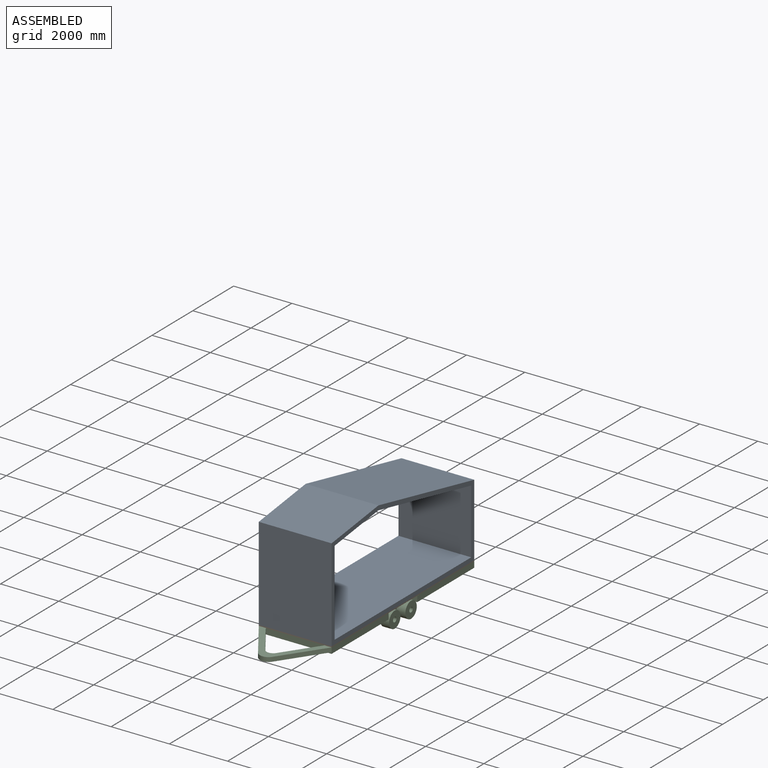
[diagram: assembled view]
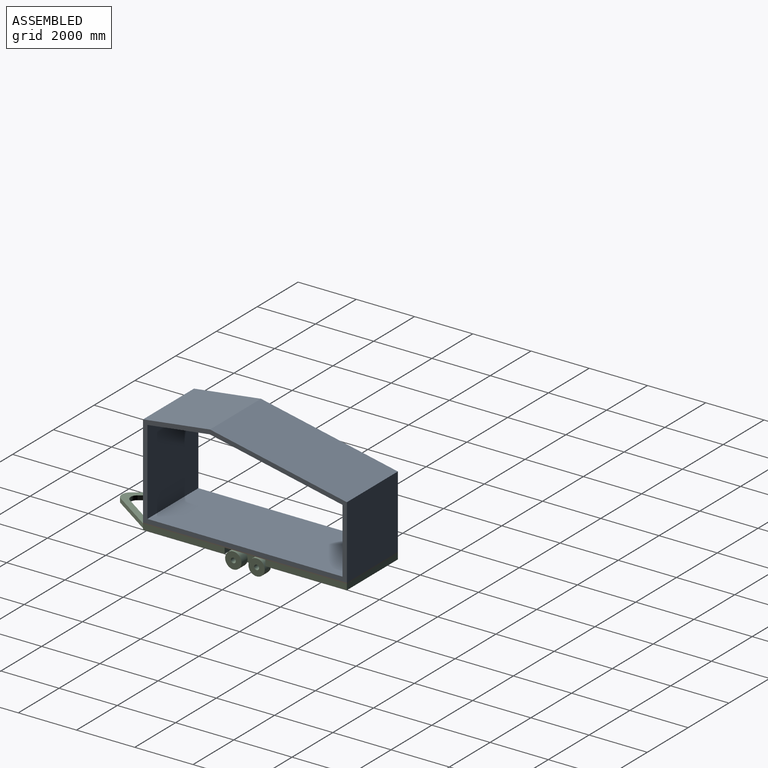
[diagram: assembled view, second angle]
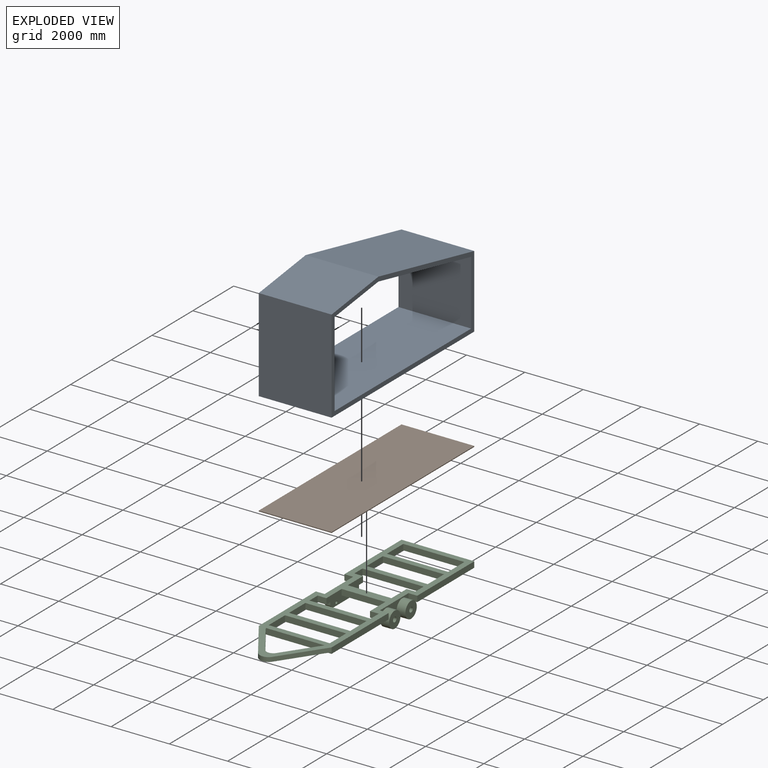
[diagram: exploded view]
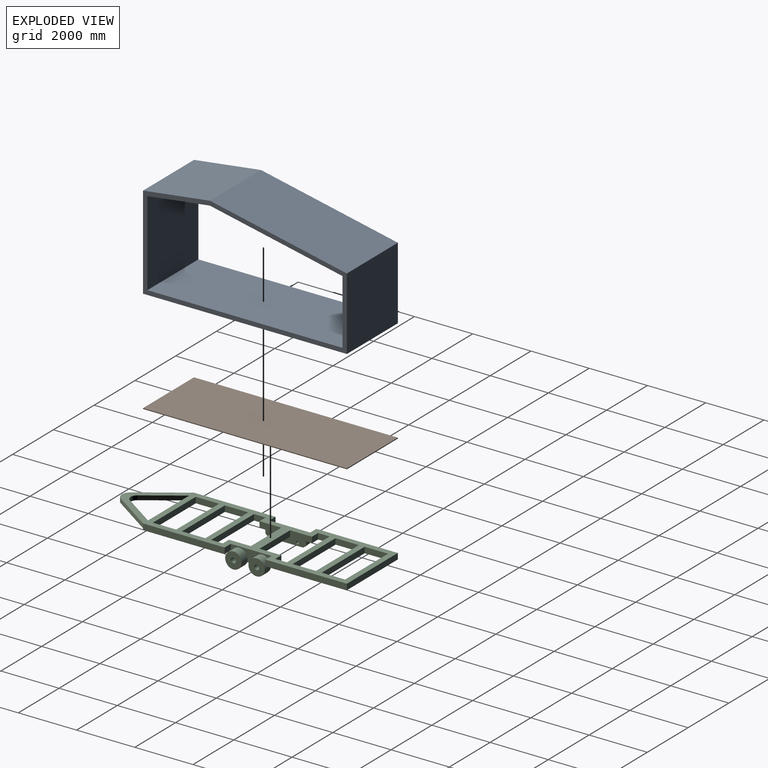
[diagram: exploded view, second angle]
ASSEMBLY  parts=3 mates=6
PART A: 12 faces, bbox 2500x7000x3500 mm
  f0: plane 3200x2500mm, normal (0,-1,0), area 8000000mm2, adj f1,f9,f10,f11
  f1: plane 7000x2500mm, normal (0,0,-1), area 17500000mm2, adj f0,f2,f10,f11
  f2: plane 2500x2500mm, normal (0,1,0), area 6250000mm2, adj f1,f3,f10,f11
  f3: plane 4700x2500mm, normal (0,0.21,0.98), area 12013013.8mm2, adj f2,f9,f10,f11
  f4: plane 6700x2500mm, normal (0,0,1), area 16750000mm2, adj f5,f8,f10,f11
  f5: plane 2918.29x2500mm, normal (0,1,0), area 7295736.5mm2, adj f4,f6,f10,f11
  f6: plane 2500x2143.92mm, normal (0,0.13,-0.99), area 5405198.9mm2, adj f5,f7,f10,f11
  f7: plane 4556.08x2500mm, normal (0,-0.21,-0.98), area 11645162.6mm2, adj f6,f8,f10,f11
  f8: plane 2500x2228.56mm, normal (0,-1,0), area 5571393.2mm2, adj f4,f7,f10,f11
  f9: plane 2500x2300mm, normal (0,-0.13,0.99), area 5798706.8mm2, adj f0,f3,f10,f11
  f10: plane 7000x3500mm, normal (1,0,0), area 2886876.3mm2, adj f0,f1,f2,f3,f4,f5,f6,f7
  f11: plane 7000x3500mm, normal (-1,0,0), area 2886876.3mm2, adj f0,f1,f2,f3,f4,f5,f6,f7
PART B: 6 faces, bbox 7000x2500x30 mm
  f0: plane 2500x30mm, normal (-1,0,0), area 75000mm2, adj f1,f3,f4,f5
  f1: plane 7000x30mm, normal (0,-1,0), area 210000mm2, adj f0,f2,f4,f5
  f2: plane 2500x30mm, normal (1,0,0), area 75000mm2, adj f1,f3,f4,f5
  f3: plane 7000x30mm, normal (0,1,0), area 210000mm2, adj f0,f2,f4,f5
  f4: plane 7000x2500mm, normal (0,0,1), area 17500000mm2, adj f0,f1,f2,f3
  f5: plane 7000x2500mm, normal (0,0,-1), area 17500000mm2, adj f0,f1,f2,f3
PART C: 77 faces, bbox 8600x2500x600 mm
  f0: plane 2500x200mm, normal (-1,0,0), area 427368.3mm2, adj f4,f34,f35,f47,f73,f75,f76
  f1: plane 1400x420mm, normal (0,-1,0), area 227323.6mm2, adj f36,f37,f47,f48,f49,f52,f58,f61
  f2: plane 170x170mm, normal (0,-1,0), area 14844mm2, adj f50,f68
  f3: plane 170x170mm, normal (0,-1,0), area 14844mm2, adj f51,f63
  f4: plane 2800x2500mm, normal (0,0,-1), area 2500000mm2, adj f0,f7,f8,f9,f10,f11,f12,f13
  f5: plane 1500x300mm, normal (0,0,-1), area 450000mm2, adj f14,f15,f16,f23
  f6: plane 2800x2500mm, normal (0,0,-1), area 2500000mm2, adj f14,f16,f20,f21,f22,f24,f25,f26
  f7: plane 800x200mm, normal (0,1,0), area 160000mm2, adj f4,f8,f46,f47
  f8: plane 2100x200mm, normal (1,0,0), area 420000mm2, adj f4,f7,f9,f47
  f9: plane 800x200mm, normal (0,-1,0), area 160000mm2, adj f4,f8,f46,f47
  f10: plane 400x200mm, normal (0,1,0), area 80000mm2, adj f4,f11,f41,f47
  f11: plane 2100x200mm, normal (1,0,0), area 420000mm2, adj f4,f10,f12,f47
  f12: plane 400x200mm, normal (0,-1,0), area 80000mm2, adj f4,f11,f13,f47
  f13: plane 300x200mm, normal (-1,0,0), area 60000mm2, adj f4,f12,f14,f47
  f14: plane 1800x420mm, normal (0,-1,0), area 582292mm2, adj f4,f5,f6,f13,f15,f23,f24,f47
  f15: plane 1500x200mm, normal (-1,0,0), area 300000mm2, adj f5,f14,f16,f47
  f16: plane 1800x420mm, normal (0,1,0), area 582292mm2, adj f4,f5,f6,f15,f23,f28,f41,f47
  f17: plane 800x200mm, normal (0,-1,0), area 160000mm2, adj f4,f18,f42,f47
  f18: plane 2100x200mm, normal (-1,0,0), area 420000mm2, adj f4,f17,f19,f47
  f19: plane 800x200mm, normal (0,1,0), area 160000mm2, adj f4,f18,f42,f47
  f20: plane 800x200mm, normal (0,-1,0), area 160000mm2, adj f6,f21,f43,f47
  f21: plane 2100x200mm, normal (-1,0,0), area 420000mm2, adj f6,f20,f22,f47
  f22: plane 800x200mm, normal (0,1,0), area 160000mm2, adj f6,f21,f43,f47
  f23: plane 1500x200mm, normal (1,0,0), area 300000mm2, adj f5,f14,f16,f47
  f24: plane 300x200mm, normal (1,0,0), area 60000mm2, adj f6,f14,f25,f47
  f25: plane 400x200mm, normal (0,-1,0), area 80000mm2, adj f6,f24,f26,f47
  f26: plane 2100x200mm, normal (-1,0,0), area 420000mm2, adj f6,f25,f27,f47
  f27: plane 400x200mm, normal (0,1,0), area 80000mm2, adj f6,f26,f28,f47
  f28: plane 300x200mm, normal (1,0,0), area 60000mm2, adj f6,f16,f27,f47
  f29: plane 2100x200mm, normal (1,0,0), area 420000mm2, adj f6,f30,f44,f47
  f30: plane 800x200mm, normal (0,-1,0), area 160000mm2, adj f6,f29,f31,f47
  f31: plane 2100x200mm, normal (-1,0,0), area 420000mm2, adj f6,f30,f44,f47
  f32: plane 1400x420mm, normal (0,1,0), area 562292mm2, adj f33,f45,f47,f53,f54,f55,f56,f57
  f33: plane 300x200mm, normal (1,0,0), area 60000mm2, adj f4,f32,f34,f47
  f34: plane 2800x200mm, normal (0,1,0), area 560000mm2, adj f0,f4,f33,f47,f70
  f35: plane 2800x200mm, normal (0,-1,0), area 560000mm2, adj f0,f4,f36,f47,f72
  f36: plane 300x200mm, normal (1,0,0), area 60000mm2, adj f1,f4,f35,f47
  f37: plane 300x200mm, normal (-1,0,0), area 60000mm2, adj f1,f6,f38,f47
  f38: plane 2800x200mm, normal (0,-1,0), area 560000mm2, adj f6,f37,f39,f47
  f39: plane 2500x200mm, normal (1,0,0), area 500000mm2, adj f6,f38,f40,f47
  f40: plane 2800x200mm, normal (0,1,0), area 560000mm2, adj f6,f39,f45,f47
  f41: plane 300x200mm, normal (-1,0,0), area 60000mm2, adj f4,f10,f16,f47
  f42: plane 2100x200mm, normal (1,0,0), area 420000mm2, adj f4,f17,f19,f47
  f43: plane 2100x200mm, normal (1,0,0), area 420000mm2, adj f6,f20,f22,f47
  f44: plane 800x200mm, normal (0,1,0), area 160000mm2, adj f6,f29,f31,f47
  f45: plane 300x200mm, normal (-1,0,0), area 60000mm2, adj f6,f32,f40,f47
  f46: plane 2100x200mm, normal (-1,0,0), area 420000mm2, adj f4,f7,f9,f47
  f47: plane 8600x2500mm, normal (0,0,1), area 6792801.4mm2, adj f0,f1,f7,f8,f9,f10,f11,f12
  f48: plane 200x120mm, normal (-1,0,0), area 24000mm2, adj f1,f4,f16,f58
  f49: plane 1200x200mm, normal (0,0,-1), area 240000mm2, adj f1,f16,f58,f61,f62,f66
  f50: cylinder r=50mm len=200mm, axis (0,-1,0), area 62831.9mm2, adj f2,f16
  f51: cylinder r=50mm len=200mm, axis (0,-1,0), area 62831.9mm2, adj f3,f16
  f52: plane 200x120mm, normal (1,0,0), area 24000mm2, adj f1,f6,f16,f61
  f53: plane 200x120mm, normal (-1,0,0), area 24000mm2, adj f4,f14,f32,f59
  f54: plane 200x120mm, normal (1,0,0), area 24000mm2, adj f6,f14,f32,f60
  f55: cylinder r=50mm len=200mm, axis (0,1,0), area 62831.9mm2, adj f14,f32
  f56: plane 1200x200mm, normal (0,0,-1), area 240000mm2, adj f14,f32,f59,f60
  f57: cylinder r=50mm len=200mm, axis (0,1,0), area 62831.9mm2, adj f14,f32
  f58: plane 200x100mm, normal (-0.71,0,-0.71), area 28284.3mm2, adj f1,f16,f48,f49,f66
  f59: plane 200x100mm, normal (-0.71,0,-0.71), area 28284.3mm2, adj f14,f32,f53,f56
  f60: plane 200x100mm, normal (0.71,0,-0.71), area 28284.3mm2, adj f14,f32,f54,f56
  f61: plane 200x100mm, normal (0.71,0,-0.71), area 28284.3mm2, adj f1,f16,f49,f52,f62
  f62: plane 540.76x259.23mm, normal (0,1,0), area 70962.7mm2, adj f49,f61,f64
  f63: cylinder r=85mm len=300mm, axis (0,1,0), area 160221.2mm2, adj f3,f65
  f64: cylinder r=280mm len=560mm, axis (0,1,0), area 527787.6mm2, adj f1,f62,f65
  f65: plane 560x560mm, normal (0,-1,0), area 223602.9mm2, adj f63,f64
  f66: plane 540.76x259.23mm, normal (0,1,0), area 70962.7mm2, adj f49,f58,f67
  f67: cylinder r=280mm len=560mm, axis (0,1,0), area 527787.6mm2, adj f1,f66,f69
  f68: cylinder r=85mm len=300mm, axis (0,1,0), area 160221.2mm2, adj f2,f69
  f69: plane 560x560mm, normal (0,-1,0), area 223602.9mm2, adj f67,f68
  f70: plane 1469.06x1002.17mm, normal (-0.56,0.83,0), area 266751.3mm2, adj f34,f47,f71,f76
  f71: cylinder r=300mm len=495.65mm, axis (0,0,1), area 87491.4mm2, adj f47,f70,f72,f76
  f72: plane 1469.06x1002.17mm, normal (-0.56,-0.83,0), area 266751.3mm2, adj f35,f47,f71,f76
  f73: plane 1200x818.62mm, normal (0.56,0.83,0), area 217895mm2, adj f0,f47,f74,f76
  f74: cylinder r=229.12mm len=378.54mm, axis (0,0,1), area 66819.6mm2, adj f47,f73,f75,f76
  f75: plane 1200x818.62mm, normal (0.56,-0.83,0), area 217895mm2, adj f0,f47,f74,f76
  f76: plane 2500x1600mm, normal (0,0,-1), area 782801.4mm2, adj f0,f70,f71,f72,f73,f74,f75
PLACE A t=(-275.51,64.92,3648.27)mm
PLACE B rot(axis=(0,0,1),90deg) t=(-275.51,64.92,3618.27)mm
PLACE C rot(axis=(0,0,1),90deg) t=(-275.51,64.92,3618.27)mm
MATE planar B.f1 <-> C.f35  axis (1,0,0) through (974.49,64.92,3633.27)mm
MATE planar A.f1 <-> B.f4  axis (0,0,-1) through (-275.51,64.92,3648.27)mm
MATE planar C.f0 <-> A.f0  axis (0,-1,0) through (-275.51,-3435.08,3514.02)mm
MATE planar B.f0 <-> C.f0  axis (0,-1,0) through (-275.51,-3435.08,3633.27)mm
MATE planar B.f5 <-> C.f47  axis (0,0,-1) through (-275.51,64.92,3618.27)mm
MATE planar A.f10 <-> C.f35  axis (1,0,0) through (974.49,-3285.08,3798.27)mm
